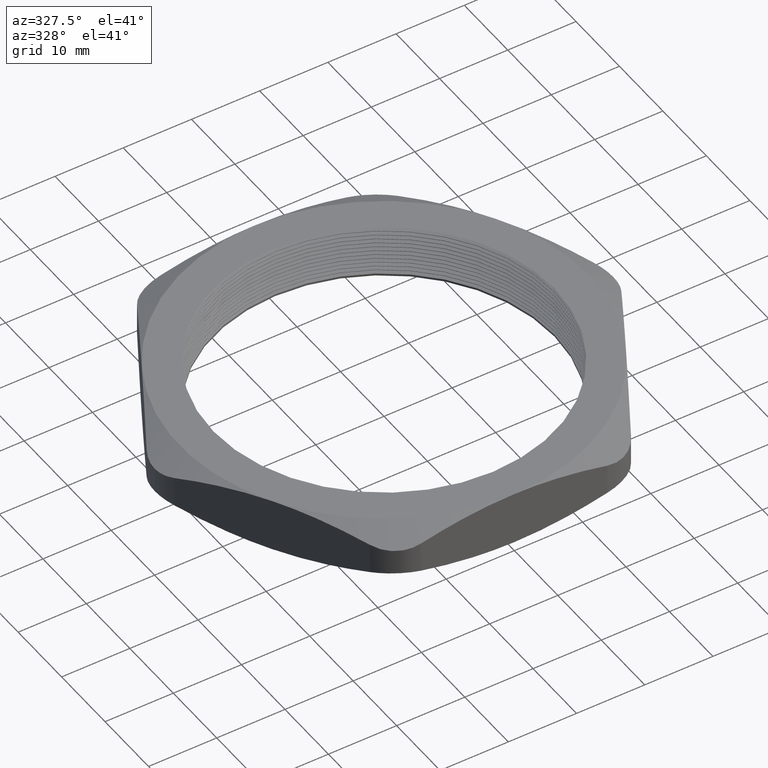
[diagram: clean part render]
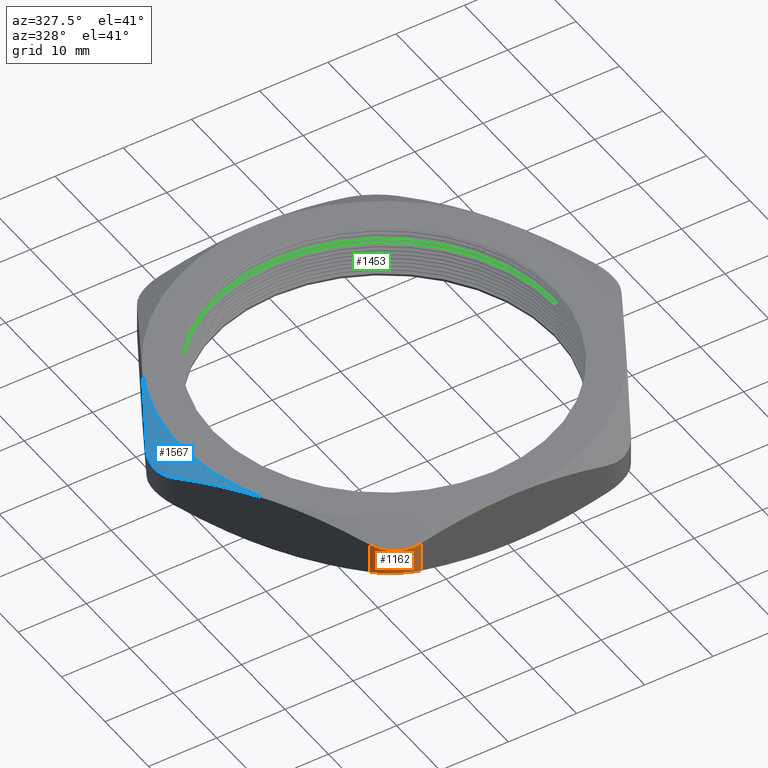
[diagram: same view with three faces highlighted in distinct colors, each labeled with its STEP entity id]
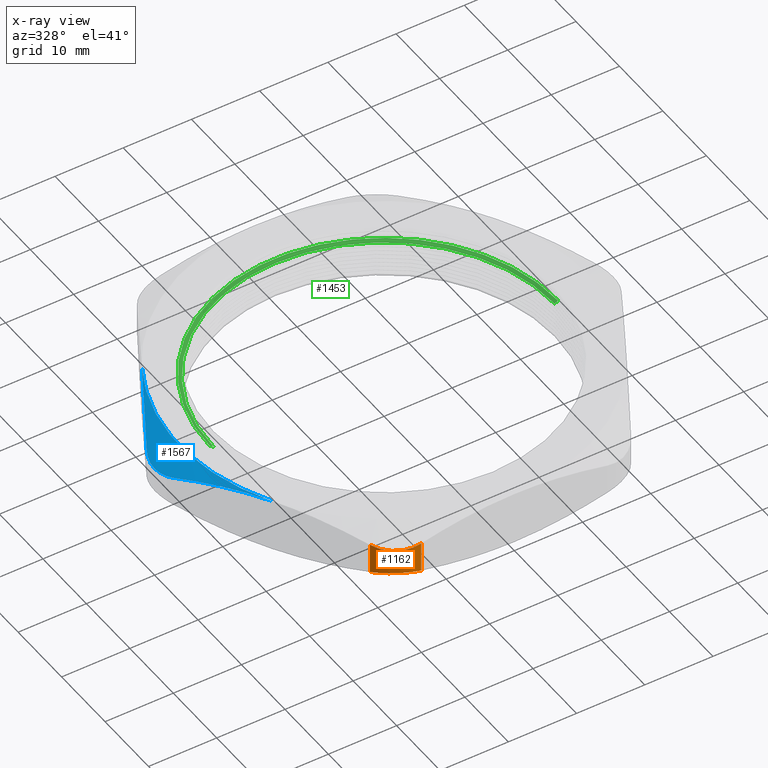
[diagram: x-ray of the same camera — body ghosted, the three highlighted faces saturated]
A machine part, auxiliary view with three faces highlighted in distinct colors.
The next image is the same camera in x-ray (body ghosted, the three faces saturated) — at least one of them is partly hidden behind the body in this view.
Their STEP definitions:

[orange] entity #1162 — the highlighted cylindrical surface (partial cylindrical patch) has radius 6.35 mm, axis along (0, 0, -1).
#724 = CARTESIAN_POINT ( 'NONE',  ( -0.7534421012924619200, -1.054999999999999900, 0.06721404586569509900 ) ) ;
#725 = CARTESIAN_POINT ( 'NONE',  ( -0.7426406280276906000, -1.073708700491182500, 0.07237975066804339100 ) ) ;
#726 = CARTESIAN_POINT ( 'NONE',  ( -0.7292618027920845200, -1.091195033875054500, 0.07637160150552656200 ) ) ;
#727 = CARTESIAN_POINT ( 'NONE',  ( -0.7062144216875246800, -1.114290582444687100, 0.08036293289793387800 ) ) ;
#728 = CARTESIAN_POINT ( 'NONE',  ( -0.6980114634144944900, -1.121510473299437200, 0.08137240177445197200 ) ) ;
#729 = CARTESIAN_POINT ( 'NONE',  ( -0.6805205885013938500, -1.134951313671748800, 0.08272984357175608400 ) ) ;
#730 = CARTESIAN_POINT ( 'NONE',  ( -0.6712656668977317100, -1.141129690300331200, 0.08306829295617795800 ) ) ;
#731 = CARTESIAN_POINT ( 'NONE',  ( -0.6522617552205258700, -1.152081483259582900, 0.08306013245854911000 ) ) ;
#732 = CARTESIAN_POINT ( 'NONE',  ( -0.6424447765496059700, -1.156909620522817300, 0.08271979029129164500 ) ) ;
#733 = CARTESIAN_POINT ( 'NONE',  ( -0.6221819559806113200, -1.165272639550648500, 0.08136507564973517700 ) ) ;
#734 = CARTESIAN_POINT ( 'NONE',  ( -0.6116474606707508200, -1.168826090778309500, 0.08033741714334190200 ) ) ;
#735 = CARTESIAN_POINT ( 'NONE',  ( -0.5799181923317214800, -1.177247800526430200, 0.07630181465680775700 ) ) ;
#736 = CARTESIAN_POINT ( 'NONE',  ( -0.5585335758802323400, -1.179999999999999700, 0.07237852613360942800 ) ) ;
#737 = CARTESIAN_POINT ( 'NONE',  ( -0.5369357503463523300, -1.179999999999999900, 0.06721404586569511300 ) ) ;
#742 = B_SPLINE_CURVE_WITH_KNOTS ( 'NONE', 3,
 ( #737, #736, #735, #734, #733, #732, #731, #730, #729, #728, #727, #726, #725, #724 ),
 .UNSPECIFIED., .F., .F.,
 ( 4, 2, 2, 2, 2, 2, 4 ),
 ( 5.275955480050202700E-018, 0.001669271586080334400, 0.002503907379120499000, 0.003338543172160663600, 0.004173178965200828600, 0.005007814758240992800, 0.006677086344321321900 ),
 .UNSPECIFIED. ) ;
#1162 = ADVANCED_FACE ( 'NONE', ( #2190 ), #2184, .T. ) ;
#1163 = EDGE_LOOP ( 'NONE', ( #1164, #1165, #1212, #1213 ) ) ;
#1164 = ORIENTED_EDGE ( 'NONE', *, *, #1560, .F. ) ;
#1165 = ORIENTED_EDGE ( 'NONE', *, *, #1367, .F. ) ;
#1212 = ORIENTED_EDGE ( 'NONE', *, *, #1919, .F. ) ;
#1213 = ORIENTED_EDGE ( 'NONE', *, *, #1379, .F. ) ;
#1367 = EDGE_CURVE ( 'NONE', #1446, #1368, #2563, .T. ) ;
#1368 = VERTEX_POINT ( 'NONE', #2605 ) ;
#1377 = VERTEX_POINT ( 'NONE', #2642 ) ;
#1379 = EDGE_CURVE ( 'NONE', #1377, #1380, #2635, .T. ) ;
#1380 = VERTEX_POINT ( 'NONE', #2631 ) ;
#1446 = VERTEX_POINT ( 'NONE', #2720 ) ;
#1560 = EDGE_CURVE ( 'NONE', #1368, #1377, #2924, .T. ) ;
#1919 = EDGE_CURVE ( 'NONE', #1380, #1446, #742, .T. ) ;
#2180 = DIRECTION ( 'NONE',  ( -1.000000000000000000, 0.0000000000000000000, 0.0000000000000000000 ) ) ;
#2181 = DIRECTION ( 'NONE',  ( 0.0000000000000000000, 0.0000000000000000000, -1.000000000000000000 ) ) ;
#2182 = CARTESIAN_POINT ( 'NONE',  ( -0.5369357503463522100, -0.9299999999999999400, 0.3100000000000000000 ) ) ;
#2183 = AXIS2_PLACEMENT_3D ( 'NONE', #2182, #2181, #2180 ) ;
#2184 = CYLINDRICAL_SURFACE ( 'NONE', #2183, 0.2500000000000000000 ) ;
#2190 = FACE_OUTER_BOUND ( 'NONE', #1163, .T. ) ;
#2563 = LINE ( 'NONE', #2608, #2607 ) ;
#2605 = CARTESIAN_POINT ( 'NONE',  ( -0.7534421012924620300, -1.054999999999999700, 0.2427859541343050400 ) ) ;
#2606 = DIRECTION ( 'NONE',  ( 0.0000000000000000000, 0.0000000000000000000, 1.000000000000000000 ) ) ;
#2607 = VECTOR ( 'NONE', #2606, 39.37007874015748100 ) ;
#2608 = CARTESIAN_POINT ( 'NONE',  ( -0.7534421012924619200, -1.054999999999999900, 0.3100000000000000000 ) ) ;
#2631 = CARTESIAN_POINT ( 'NONE',  ( -0.5369357503463523300, -1.179999999999999900, 0.06721404586569511300 ) ) ;
#2632 = DIRECTION ( 'NONE',  ( 0.0000000000000000000, 0.0000000000000000000, -1.000000000000000000 ) ) ;
#2633 = VECTOR ( 'NONE', #2632, 39.37007874015748100 ) ;
#2634 = CARTESIAN_POINT ( 'NONE',  ( -0.5369357503463522100, -1.179999999999999900, 0.3100000000000000000 ) ) ;
#2635 = LINE ( 'NONE', #2634, #2633 ) ;
#2642 = CARTESIAN_POINT ( 'NONE',  ( -0.5369357503462982600, -1.179999999999999900, 0.2427859541343179400 ) ) ;
#2720 = CARTESIAN_POINT ( 'NONE',  ( -0.7534421012924619200, -1.054999999999999900, 0.06721404586569509900 ) ) ;
#2906 = CARTESIAN_POINT ( 'NONE',  ( -0.5369357503462982600, -1.179999999999999900, 0.2427859541343179400 ) ) ;
#2907 = CARTESIAN_POINT ( 'NONE',  ( -0.5585386968758736500, -1.180000000000002800, 0.2376202493319609900 ) ) ;
#2908 = CARTESIAN_POINT ( 'NONE',  ( -0.5803717184231316200, -1.177156764165117500, 0.2336283984944805800 ) ) ;
#2909 = CARTESIAN_POINT ( 'NONE',  ( -0.6118967407510582700, -1.168744920922687400, 0.2296370671020699900 ) ) ;
#2910 = CARTESIAN_POINT ( 'NONE',  ( -0.6222508287803411000, -1.165250896099435400, 0.2286275982255509500 ) ) ;
#2911 = CARTESIAN_POINT ( 'NONE',  ( -0.6426363754475297200, -1.156823774276431300, 0.2272701564282451900 ) ) ;
#2912 = CARTESIAN_POINT ( 'NONE',  ( -0.6526144673638641900, -1.151897965371917900, 0.2269317070438224300 ) ) ;
#2913 = CARTESIAN_POINT ( 'NONE',  ( -0.6716009541221716900, -1.140915991567807300, 0.2269398675414502400 ) ) ;
#2914 = CARTESIAN_POINT ( 'NONE',  ( -0.6806907329805530500, -1.134828307281997600, 0.2272802097087073000 ) ) ;
#2915 = CARTESIAN_POINT ( 'NONE',  ( -0.6980647301954898700, -1.121461699430836800, 0.2286349243502631700 ) ) ;
#2916 = CARTESIAN_POINT ( 'NONE',  ( -0.7064093568846853100, -1.114115284490278900, 0.2296625828566563100 ) ) ;
#2917 = CARTESIAN_POINT ( 'NONE',  ( -0.7295674056393783900, -1.090847786939243200, 0.2336981853431904500 ) ) ;
#2918 = CARTESIAN_POINT ( 'NONE',  ( -0.7426431885255193600, -1.073704265578848200, 0.2376214738663894600 ) ) ;
#2919 = CARTESIAN_POINT ( 'NONE',  ( -0.7534421012924620300, -1.054999999999999700, 0.2427859541343050400 ) ) ;
#2924 = B_SPLINE_CURVE_WITH_KNOTS ( 'NONE', 3,
 ( #2919, #2918, #2917, #2916, #2915, #2914, #2913, #2912, #2911, #2910, #2909, #2908, #2907, #2906 ),
 .UNSPECIFIED., .F., .F.,
 ( 4, 2, 2, 2, 2, 2, 4 ),
 ( 7.806255641895631900E-018, 0.001669271586080689600, 0.002503907379121026800, 0.003338543172161363500, 0.004173178965201701200, 0.005007814758242037900, 0.006677086344322716700 ),
 .UNSPECIFIED. ) ;

[blue] entity #1567 — the highlighted conical surface has half-angle 60 deg.
#164 = B_SPLINE_CURVE_WITH_KNOTS ( 'NONE', 3,
 ( #222, #221, #220, #219, #218, #217, #216, #215 ),
 .UNSPECIFIED., .F., .F.,
 ( 4, 2, 2, 4 ),
 ( 2.742838647325547800E-018, 0.001671790699287654500, 0.002507686048931480300, 0.003343581398575306000 ),
 .UNSPECIFIED. ) ;
#215 = CARTESIAN_POINT ( 'NONE',  ( -1.323871500692703500, 2.219626507176767900E-016, 0.2269357503463527200 ) ) ;
#216 = CARTESIAN_POINT ( 'NONE',  ( -1.323871500692704200, 0.01098405379685897700, 0.2269357503463526300 ) ) ;
#217 = CARTESIAN_POINT ( 'NONE',  ( -1.323150731314133100, 0.02191688359895201500, 0.2272730796241371800 ) ) ;
#218 = CARTESIAN_POINT ( 'NONE',  ( -1.320270611761771500, 0.04368023203091943300, 0.2286236963736375800 ) ) ;
#219 = CARTESIAN_POINT ( 'NONE',  ( -1.318082992759608300, 0.05459731993352176500, 0.2296502803749609400 ) ) ;
#220 = CARTESIAN_POINT ( 'NONE',  ( -1.309510802919500600, 0.08634002578141528100, 0.2336862750730252000 ) ) ;
#221 = CARTESIAN_POINT ( 'NONE',  ( -1.301193061145003100, 0.1062675076407769300, 0.2376136801013974100 ) ) ;
#222 = CARTESIAN_POINT ( 'NONE',  ( -1.290377851638813400, 0.1250000000000001100, 0.2427859541343051200 ) ) ;
#301 = DIRECTION ( 'NONE',  ( 1.000000000000000000, 0.0000000000000000000, 0.0000000000000000000 ) ) ;
#302 = DIRECTION ( 'NONE',  ( 0.0000000000000000000, 0.0000000000000000000, 1.000000000000000000 ) ) ;
#303 = CARTESIAN_POINT ( 'NONE',  ( 0.0000000000000000000, 0.0000000000000000000, 0.3100000000000000000 ) ) ;
#304 = AXIS2_PLACEMENT_3D ( 'NONE', #303, #302, #301 ) ;
#305 = CIRCLE ( 'NONE', #304, 1.180000000000000200 ) ;
#589 = CARTESIAN_POINT ( 'NONE',  ( -1.290377851638813400, -0.1249999999999998100, 0.2427859541343051200 ) ) ;
#590 = CARTESIAN_POINT ( 'NONE',  ( -1.301163024300265200, -0.1063195329819641400, 0.2376280449449064100 ) ) ;
#591 = CARTESIAN_POINT ( 'NONE',  ( -1.309608273902644700, -0.08602256121026791200, 0.2336403273867146400 ) ) ;
#592 = CARTESIAN_POINT ( 'NONE',  ( -1.318085377249127700, -0.05456655859989911800, 0.2296491859462564100 ) ) ;
#593 = CARTESIAN_POINT ( 'NONE',  ( -1.320238384401353900, -0.04387041525387930900, 0.2286388179600908100 ) ) ;
#594 = CARTESIAN_POINT ( 'NONE',  ( -1.323141469423208600, -0.02203945126250673700, 0.2272774143254683900 ) ) ;
#595 = CARTESIAN_POINT ( 'NONE',  ( -1.323871500692704400, -0.01095095147729014000, 0.2269357503463527200 ) ) ;
#596 = CARTESIAN_POINT ( 'NONE',  ( -1.323871500692703500, 2.219626507176767900E-016, 0.2269357503463527200 ) ) ;
#598 = CARTESIAN_POINT ( 'NONE',  ( -1.323871500692703500, 2.219626507176767900E-016, 0.2269357503463527200 ) ) ;
#599 = B_SPLINE_CURVE_WITH_KNOTS ( 'NONE', 3,
 ( #596, #595, #594, #593, #592, #591, #590, #589 ),
 .UNSPECIFIED., .F., .F.,
 ( 4, 2, 2, 4 ),
 ( 0.003343581398575306000, 0.004176957635011810700, 0.005010333871448315000, 0.006677086344321322800 ),
 .UNSPECIFIED. ) ;
#600 = CARTESIAN_POINT ( 'NONE',  ( -1.290377851638813400, -0.1249999999999998100, 0.2427859541343051200 ) ) ;
#1195 = VERTEX_POINT ( 'NONE', #2211 ) ;
#1205 = EDGE_CURVE ( 'NONE', #1206, #1195, #2254, .T. ) ;
#1206 = VERTEX_POINT ( 'NONE', #2253 ) ;
#1371 = VERTEX_POINT ( 'NONE', #2603 ) ;
#1373 = EDGE_CURVE ( 'NONE', #1856, #1371, #2594, .T. ) ;
#1550 = ORIENTED_EDGE ( 'NONE', *, *, #1205, .T. ) ;
#1552 = ORIENTED_EDGE ( 'NONE', *, *, #1673, .T. ) ;
#1567 = ADVANCED_FACE ( 'NONE', ( #2903 ), #2901, .T. ) ;
#1569 = EDGE_LOOP ( 'NONE', ( #1550, #1552, #1638, #1639, #1590 ) ) ;
#1590 = ORIENTED_EDGE ( 'NONE', *, *, #1731, .F. ) ;
#1638 = ORIENTED_EDGE ( 'NONE', *, *, #1854, .T. ) ;
#1639 = ORIENTED_EDGE ( 'NONE', *, *, #1373, .T. ) ;
#1673 = EDGE_CURVE ( 'NONE', #1195, #1855, #164, .T. ) ;
#1731 = EDGE_CURVE ( 'NONE', #1206, #1371, #305, .T. ) ;
#1854 = EDGE_CURVE ( 'NONE', #1855, #1856, #599, .T. ) ;
#1855 = VERTEX_POINT ( 'NONE', #598 ) ;
#1856 = VERTEX_POINT ( 'NONE', #600 ) ;
#2211 = CARTESIAN_POINT ( 'NONE',  ( -1.290377851638813400, 0.1250000000000001100, 0.2427859541343051200 ) ) ;
#2245 = CARTESIAN_POINT ( 'NONE',  ( -1.290377851638813400, 0.1250000000000001100, 0.2427859541343051200 ) ) ;
#2246 = CARTESIAN_POINT ( 'NONE',  ( -1.246431231723729200, 0.2011177785138446300, 0.2638030191195701000 ) ) ;
#2247 = CARTESIAN_POINT ( 'NONE',  ( -1.202143552112761200, 0.2778262897493733500, 0.2807020580561908100 ) ) ;
#2248 = CARTESIAN_POINT ( 'NONE',  ( -1.135048905416903500, 0.3940376267424818300, 0.2980438790977825200 ) ) ;
#2249 = CARTESIAN_POINT ( 'NONE',  ( -1.112573565966476800, 0.4329660565879781000, 0.3024908025705315100 ) ) ;
#2250 = CARTESIAN_POINT ( 'NONE',  ( -1.067381612085252800, 0.5112408168035675900, 0.3084714449772222300 ) ) ;
#2251 = CARTESIAN_POINT ( 'NONE',  ( -1.044586880877922800, 0.5507224493995391800, 0.3100000000000003300 ) ) ;
#2252 = CARTESIAN_POINT ( 'NONE',  ( -1.021909976465637400, 0.5899999999999999700, 0.3100000000000000000 ) ) ;
#2253 = CARTESIAN_POINT ( 'NONE',  ( -1.021909976465637400, 0.5899999999999999700, 0.3100000000000000000 ) ) ;
#2254 = B_SPLINE_CURVE_WITH_KNOTS ( 'NONE', 3,
 ( #2252, #2251, #2250, #2249, #2248, #2247, #2246, #2245 ),
 .UNSPECIFIED., .F., .F.,
 ( 4, 2, 2, 4 ),
 ( 0.01750939737440082600, 0.02093024688783882300, 0.02435109640127682000, 0.03119279542815280700 ),
 .UNSPECIFIED. ) ;
#2590 = CARTESIAN_POINT ( 'NONE',  ( -1.112566298939979400, -0.4329786434470909700, 0.3038445522537130400 ) ) ;
#2591 = CARTESIAN_POINT ( 'NONE',  ( -1.202005897894103500, -0.2780647138499641700, 0.2807479695387031200 ) ) ;
#2592 = CARTESIAN_POINT ( 'NONE',  ( -1.246341198180636300, -0.2012737211848654200, 0.2638460768298029300 ) ) ;
#2593 = CARTESIAN_POINT ( 'NONE',  ( -1.290377851638813400, -0.1249999999999998100, 0.2427859541343051200 ) ) ;
#2594 = B_SPLINE_CURVE_WITH_KNOTS ( 'NONE', 3,
 ( #2593, #2592, #2591, #2590, #2645, #2644 ),
 .UNSPECIFIED., .F., .F.,
 ( 4, 2, 4 ),
 ( 0.003767047510153079000, 0.01063822244227694500, 0.01750939737440081200 ),
 .UNSPECIFIED. ) ;
#2603 = CARTESIAN_POINT ( 'NONE',  ( -1.021909976465637900, -0.5899999999999995200, 0.3100000000000000000 ) ) ;
#2644 = CARTESIAN_POINT ( 'NONE',  ( -1.021909976465637900, -0.5899999999999995200, 0.3100000000000000000 ) ) ;
#2645 = CARTESIAN_POINT ( 'NONE',  ( -1.067459181867329400, -0.5111064619998793000, 0.3100000000000001600 ) ) ;
#2898 = DIRECTION ( 'NONE',  ( 1.000000000000000000, 0.0000000000000000000, 0.0000000000000000000 ) ) ;
#2899 = DIRECTION ( 'NONE',  ( 0.0000000000000000000, 0.0000000000000000000, -1.000000000000000000 ) ) ;
#2900 = AXIS2_PLACEMENT_3D ( 'NONE', #2902, #2899, #2898 ) ;
#2901 = CONICAL_SURFACE ( 'NONE', #2900, 1.180000000000000200, 1.047197551196600100 ) ;
#2902 = CARTESIAN_POINT ( 'NONE',  ( 0.0000000000000000000, 0.0000000000000000000, 0.3100000000000000000 ) ) ;
#2903 = FACE_OUTER_BOUND ( 'NONE', #1569, .T. ) ;

[green] entity #1453 — the highlighted conical surface has half-angle 60 deg.
#1148 = EDGE_CURVE ( 'NONE', #1555, #1554, #2165, .T. ) ;
#1450 = ORIENTED_EDGE ( 'NONE', *, *, #1487, .T. ) ;
#1451 = ORIENTED_EDGE ( 'NONE', *, *, #1568, .T. ) ;
#1453 = ADVANCED_FACE ( 'NONE', ( #2718 ), #2710, .F. ) ;
#1454 = EDGE_LOOP ( 'NONE', ( #1483, #1484, #1451, #1450 ) ) ;
#1483 = ORIENTED_EDGE ( 'NONE', *, *, #1557, .F. ) ;
#1484 = ORIENTED_EDGE ( 'NONE', *, *, #1148, .F. ) ;
#1487 = EDGE_CURVE ( 'NONE', #1564, #1558, #2793, .T. ) ;
#1554 = VERTEX_POINT ( 'NONE', #2863 ) ;
#1555 = VERTEX_POINT ( 'NONE', #2862 ) ;
#1557 = EDGE_CURVE ( 'NONE', #1554, #1558, #2861, .T. ) ;
#1558 = VERTEX_POINT ( 'NONE', #2925 ) ;
#1564 = VERTEX_POINT ( 'NONE', #2904 ) ;
#1568 = EDGE_CURVE ( 'NONE', #1555, #1564, #2897, .T. ) ;
#2161 = DIRECTION ( 'NONE',  ( 1.000000000000000000, 0.0000000000000000000, 0.0000000000000000000 ) ) ;
#2162 = DIRECTION ( 'NONE',  ( 0.0000000000000000000, 0.0000000000000000000, 1.000000000000000000 ) ) ;
#2163 = CARTESIAN_POINT ( 'NONE',  ( 0.0000000000000000000, 0.0000000000000000000, 0.2119059892324149900 ) ) ;
#2164 = AXIS2_PLACEMENT_3D ( 'NONE', #2163, #2162, #2161 ) ;
#2165 = CIRCLE ( 'NONE', #2164, 0.9849999999999999900 ) ;
#2195 = VECTOR ( 'NONE', #2200, 39.37007874015748100 ) ;
#2196 = CARTESIAN_POINT ( 'NONE',  ( 0.9849999999999999900, 0.0000000000000000000, 0.2119059892324149900 ) ) ;
#2200 = DIRECTION ( 'NONE',  ( 0.8660254037844353800, 0.0000000000000000000, 0.5000000000000056600 ) ) ;
#2706 = DIRECTION ( 'NONE',  ( 1.000000000000000000, 0.0000000000000000000, 0.0000000000000000000 ) ) ;
#2707 = DIRECTION ( 'NONE',  ( 0.0000000000000000000, 0.0000000000000000000, 1.000000000000000000 ) ) ;
#2708 = CARTESIAN_POINT ( 'NONE',  ( 0.0000000000000000000, 0.0000000000000000000, 0.2119059892324149900 ) ) ;
#2709 = AXIS2_PLACEMENT_3D ( 'NONE', #2708, #2707, #2706 ) ;
#2710 = CONICAL_SURFACE ( 'NONE', #2709, 0.9849999999999999900, 1.047197551196591200 ) ;
#2718 = FACE_OUTER_BOUND ( 'NONE', #1454, .T. ) ;
#2785 = DIRECTION ( 'NONE',  ( 1.000000000000000000, 0.0000000000000000000, 0.0000000000000000000 ) ) ;
#2786 = DIRECTION ( 'NONE',  ( 0.0000000000000000000, 0.0000000000000000000, 1.000000000000000000 ) ) ;
#2787 = CARTESIAN_POINT ( 'NONE',  ( 0.0000000000000000000, 0.0000000000000000000, 0.2234529946162077100 ) ) ;
#2788 = AXIS2_PLACEMENT_3D ( 'NONE', #2787, #2786, #2785 ) ;
#2793 = CIRCLE ( 'NONE', #2788, 1.005000000000000100 ) ;
#2860 = CARTESIAN_POINT ( 'NONE',  ( -0.9849999999999999900, 1.206277097160143100E-016, 0.2119059892324149900 ) ) ;
#2861 = LINE ( 'NONE', #2860, #2927 ) ;
#2862 = CARTESIAN_POINT ( 'NONE',  ( 0.9849999999999999900, 1.206277097160143100E-016, 0.2119059892324149900 ) ) ;
#2863 = CARTESIAN_POINT ( 'NONE',  ( -0.9849999999999999900, 0.0000000000000000000, 0.2119059892324149900 ) ) ;
#2897 = LINE ( 'NONE', #2196, #2195 ) ;
#2904 = CARTESIAN_POINT ( 'NONE',  ( 1.005000000000000100, 1.230770033143090100E-016, 0.2234529946162077100 ) ) ;
#2925 = CARTESIAN_POINT ( 'NONE',  ( -1.005000000000000100, 0.0000000000000000000, 0.2234529946162077100 ) ) ;
#2926 = DIRECTION ( 'NONE',  ( -0.8660254037844353800, 1.060575238724902800E-016, 0.5000000000000056600 ) ) ;
#2927 = VECTOR ( 'NONE', #2926, 39.37007874015748100 ) ;